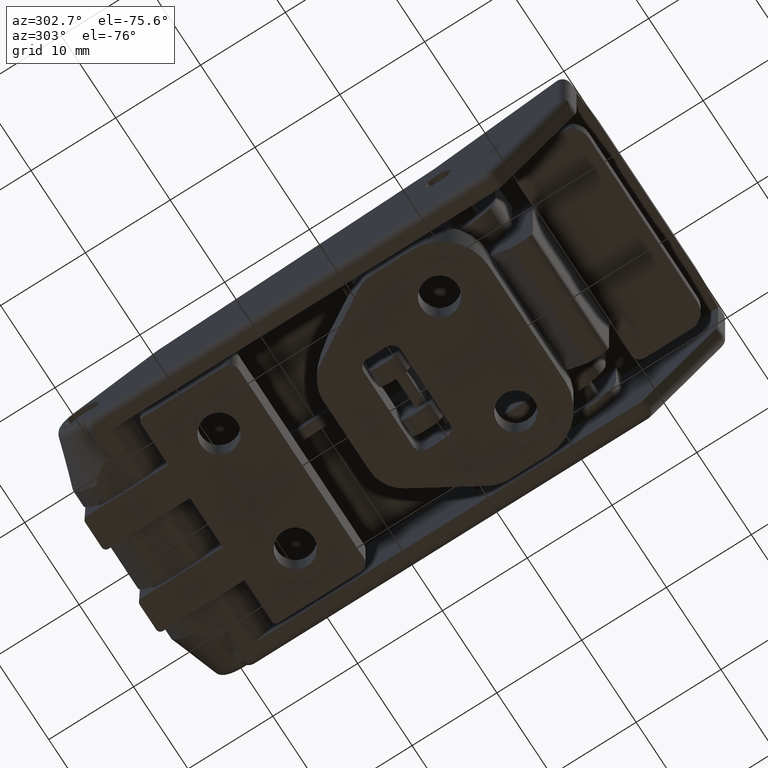
[diagram: clean part render]
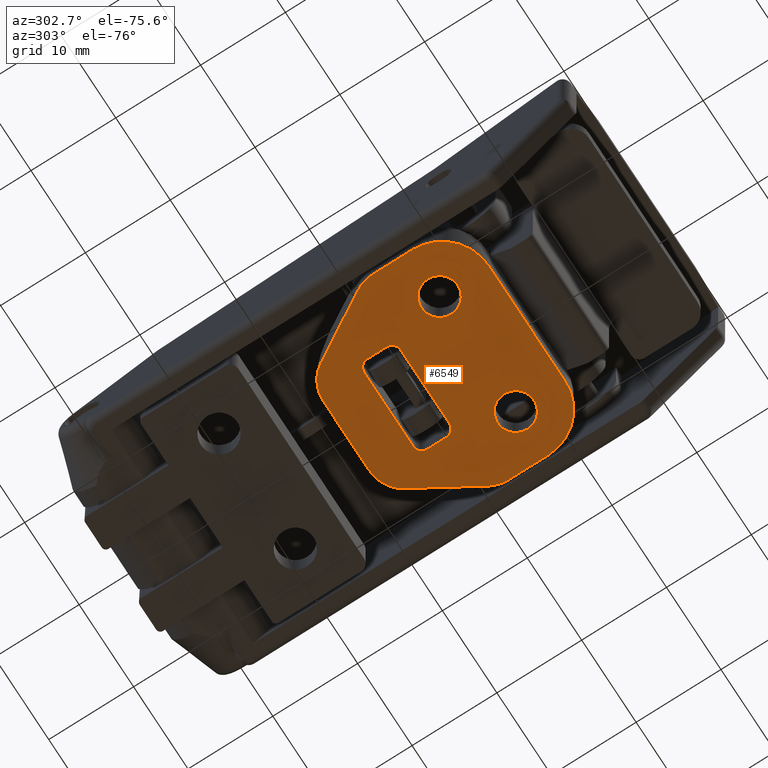
[diagram: same view with one face highlighted and labeled with its STEP entity id]
A machine part, auxiliary view. The second image highlights one B-rep face of the part: STEP entity #6549.
In plain terms, the highlighted planar face has unit normal (0, 0, 1).
Its self-contained STEP definition (entity closure, byte-faithful):
#108 = ORIENTED_EDGE ( 'NONE', *, *, #7552, .T. ) ;
#242 = CARTESIAN_POINT ( 'NONE',  ( -5.500000000000000900, 6.632451655132279600, 0.0000000000000000000 ) ) ;
#360 = DIRECTION ( 'NONE',  ( 1.000000000000000000, 0.0000000000000000000, 0.0000000000000000000 ) ) ;
#397 = CARTESIAN_POINT ( 'NONE',  ( 8.500000000000001800, 4.392064140206247900, 0.0000000000000000000 ) ) ;
#484 = CARTESIAN_POINT ( 'NONE',  ( -7.000000000000000000, 0.0000000000000000000, 0.0000000000000000000 ) ) ;
#550 = ORIENTED_EDGE ( 'NONE', *, *, #3716, .T. ) ;
#601 = DIRECTION ( 'NONE',  ( -0.0000000000000000000, 0.0000000000000000000, 1.000000000000000000 ) ) ;
#641 = AXIS2_PLACEMENT_3D ( 'NONE', #5346, #13005, #6433 ) ;
#709 = VECTOR ( 'NONE', #8869, 1000.000000000000000 ) ;
#729 = ORIENTED_EDGE ( 'NONE', *, *, #13863, .T. ) ;
#773 = CARTESIAN_POINT ( 'NONE',  ( -5.500000000000000000, 10.49999999999999100, 0.0000000000000000000 ) ) ;
#794 = CARTESIAN_POINT ( 'NONE',  ( 5.500000000000000000, 7.244030650891047300, -3.504537631043194400E-016 ) ) ;
#960 = CARTESIAN_POINT ( 'NONE',  ( 5.500000000000000000, 10.49999999999999100, 0.0000000000000000000 ) ) ;
#970 = CARTESIAN_POINT ( 'NONE',  ( 11.92997170285018000, 6.450047161916352000, 0.0000000000000000000 ) ) ;
#975 = CIRCLE ( 'NONE', #1890, 1.000000000000000000 ) ;
#1048 = AXIS2_PLACEMENT_3D ( 'NONE', #10308, #3780, #11421 ) ;
#1064 = CARTESIAN_POINT ( 'NONE',  ( 12.49999999999999500, 5.499999999999992900, 0.0000000000000000000 ) ) ;
#1125 = LINE ( 'NONE', #5094, #9829 ) ;
#1136 = FACE_OUTER_BOUND ( 'NONE', #4566, .T. ) ;
#1238 = CARTESIAN_POINT ( 'NONE',  ( -12.49999999999999500, 15.49999999999999100, 0.0000000000000000000 ) ) ;
#1325 = CARTESIAN_POINT ( 'NONE',  ( -4.500000000000000000, 6.199999999999992200, -4.628272012944402600E-016 ) ) ;
#1405 = LINE ( 'NONE', #960, #3977 ) ;
#1482 = DIRECTION ( 'NONE',  ( 1.000000000000000000, 0.0000000000000000000, 0.0000000000000000000 ) ) ;
#1560 = EDGE_CURVE ( 'NONE', #7190, #11883, #975, .T. ) ;
#1573 = DIRECTION ( 'NONE',  ( 1.000000000000000000, 0.0000000000000000000, 0.0000000000000000000 ) ) ;
#1731 = LINE ( 'NONE', #4260, #10094 ) ;
#1787 = AXIS2_PLACEMENT_3D ( 'NONE', #484, #8108, #1573 ) ;
#1816 = VERTEX_POINT ( 'NONE', #11660 ) ;
#1890 = AXIS2_PLACEMENT_3D ( 'NONE', #9780, #3246, #10911 ) ;
#1908 = VECTOR ( 'NONE', #4741, 1000.000000000000000 ) ;
#1933 = CARTESIAN_POINT ( 'NONE',  ( -5.500000000000000000, 9.499999999999991100, -1.076342328591722300E-016 ) ) ;
#2052 = DIRECTION ( 'NONE',  ( -0.0000000000000000000, 1.000000000000000000, 1.076342328591721800E-016 ) ) ;
#2175 = EDGE_CURVE ( 'NONE', #10014, #14050, #1125, .T. ) ;
#2210 = EDGE_CURVE ( 'NONE', #14167, #11883, #12100, .T. ) ;
#2494 = CARTESIAN_POINT ( 'NONE',  ( 5.500000000000000000, 9.499999999999991100, -1.076342328591722300E-016 ) ) ;
#2556 = CIRCLE ( 'NONE', #2807, 5.500000000000000000 ) ;
#2807 = AXIS2_PLACEMENT_3D ( 'NONE', #11735, #5188, #12842 ) ;
#2854 = EDGE_CURVE ( 'NONE', #14167, #6347, #6099, .T. ) ;
#2919 = VERTEX_POINT ( 'NONE', #4738 ) ;
#3067 = EDGE_LOOP ( 'NONE', ( #12030, #108 ) ) ;
#3093 = CARTESIAN_POINT ( 'NONE',  ( 4.235238484123758700, 11.49999999999999100, 0.0000000000000000000 ) ) ;
#3103 = DIRECTION ( 'NONE',  ( 3.257696668501046100E-016, 1.000000000000000000, -0.0000000000000000000 ) ) ;
#3246 = DIRECTION ( 'NONE',  ( -0.0000000000000000000, 0.0000000000000000000, 1.000000000000000000 ) ) ;
#3262 = VECTOR ( 'NONE', #11099, 1000.000000000000000 ) ;
#3343 = AXIS2_PLACEMENT_3D ( 'NONE', #4813, #12477, #5887 ) ;
#3465 = VERTEX_POINT ( 'NONE', #8454 ) ;
#3474 = DIRECTION ( 'NONE',  ( 0.0000000000000000000, -0.0000000000000000000, -1.000000000000000000 ) ) ;
#3648 = EDGE_CURVE ( 'NONE', #7190, #3973, #10808, .T. ) ;
#3699 = VERTEX_POINT ( 'NONE', #11052 ) ;
#3714 = CARTESIAN_POINT ( 'NONE',  ( 7.000000000000000000, 0.0000000000000000000, 0.0000000000000000000 ) ) ;
#3716 = EDGE_CURVE ( 'NONE', #6347, #10936, #9417, .T. ) ;
#3738 = EDGE_CURVE ( 'NONE', #11258, #3465, #12019, .T. ) ;
#3780 = DIRECTION ( 'NONE',  ( 0.0000000000000000000, -0.0000000000000000000, -1.000000000000000000 ) ) ;
#3877 = EDGE_CURVE ( 'NONE', #11786, #12605, #13201, .T. ) ;
#3973 = VERTEX_POINT ( 'NONE', #5227 ) ;
#3977 = VECTOR ( 'NONE', #2052, 1000.000000000000000 ) ;
#4050 = EDGE_CURVE ( 'NONE', #13552, #5595, #1731, .T. ) ;
#4053 = CARTESIAN_POINT ( 'NONE',  ( 5.085786437626903300, 6.199999999999992200, 0.0000000000000000000 ) ) ;
#4099 = ORIENTED_EDGE ( 'NONE', *, *, #13038, .F. ) ;
#4158 = CARTESIAN_POINT ( 'NONE',  ( 7.000000000000000000, 0.0000000000000000000, 0.0000000000000000000 ) ) ;
#4179 = ORIENTED_EDGE ( 'NONE', *, *, #6699, .T. ) ;
#4184 = CIRCLE ( 'NONE', #641, 2.149999999999999900 ) ;
#4217 = DIRECTION ( 'NONE',  ( 1.000000000000000000, 0.0000000000000000000, 0.0000000000000000000 ) ) ;
#4260 = CARTESIAN_POINT ( 'NONE',  ( -12.49999999999999500, 5.499999999999992900, 0.0000000000000000000 ) ) ;
#4371 = ORIENTED_EDGE ( 'NONE', *, *, #6752, .T. ) ;
#4373 = AXIS2_PLACEMENT_3D ( 'NONE', #12623, #601, #8233 ) ;
#4414 = DIRECTION ( 'NONE',  ( 1.000000000000000000, -0.0000000000000000000, -0.0000000000000000000 ) ) ;
#4556 = EDGE_LOOP ( 'NONE', ( #6056, #12962, #10543, #5836, #550, #11275, #729, #4179 ) ) ;
#4566 = EDGE_LOOP ( 'NONE', ( #11150, #5496, #10188, #5877, #7941, #4371, #11782, #8810, #12876, #10448, #4099, #7737 ) ) ;
#4572 = CARTESIAN_POINT ( 'NONE',  ( -11.92997170285017500, 6.450047161916360800, 0.0000000000000000000 ) ) ;
#4616 = CIRCLE ( 'NONE', #1048, 4.000000000000000000 ) ;
#4668 = EDGE_CURVE ( 'NONE', #10014, #12605, #2556, .T. ) ;
#4738 = CARTESIAN_POINT ( 'NONE',  ( 7.665210186973935100, 13.55798302171009700, 0.0000000000000000000 ) ) ;
#4741 = DIRECTION ( 'NONE',  ( -1.628848334250523100E-016, -1.000000000000000000, 0.0000000000000000000 ) ) ;
#4813 = CARTESIAN_POINT ( 'NONE',  ( -8.499999999999996400, 4.392064140206255900, 0.0000000000000000000 ) ) ;
#4820 = DIRECTION ( 'NONE',  ( 1.000000000000000000, 0.0000000000000000000, 0.0000000000000000000 ) ) ;
#4866 = LINE ( 'NONE', #1064, #13239 ) ;
#4953 = AXIS2_PLACEMENT_3D ( 'NONE', #4158, #11817, #5271 ) ;
#5094 = CARTESIAN_POINT ( 'NONE',  ( -12.49999999999999800, -5.800000000000008700, 0.0000000000000000000 ) ) ;
#5188 = DIRECTION ( 'NONE',  ( 0.0000000000000000000, -0.0000000000000000000, -1.000000000000000000 ) ) ;
#5227 = CARTESIAN_POINT ( 'NONE',  ( 4.499999999999999100, 10.49999999999999100, 0.0000000000000000000 ) ) ;
#5271 = DIRECTION ( 'NONE',  ( 1.000000000000000000, 0.0000000000000000000, 0.0000000000000000000 ) ) ;
#5346 = CARTESIAN_POINT ( 'NONE',  ( -7.000000000000000000, 0.0000000000000000000, 0.0000000000000000000 ) ) ;
#5356 = DIRECTION ( 'NONE',  ( 0.5144957554275263500, 0.8574929257125443200, 0.0000000000000000000 ) ) ;
#5401 = AXIS2_PLACEMENT_3D ( 'NONE', #397, #8020, #1482 ) ;
#5429 = EDGE_CURVE ( 'NONE', #7098, #3699, #10063, .T. ) ;
#5431 = EDGE_CURVE ( 'NONE', #5595, #3465, #4616, .T. ) ;
#5452 = CARTESIAN_POINT ( 'NONE',  ( 4.499999999999999100, 6.199999999999992200, -4.628272012944402600E-016 ) ) ;
#5496 = ORIENTED_EDGE ( 'NONE', *, *, #12156, .T. ) ;
#5595 = VERTEX_POINT ( 'NONE', #10557 ) ;
#5827 = VERTEX_POINT ( 'NONE', #13145 ) ;
#5836 = ORIENTED_EDGE ( 'NONE', *, *, #2854, .T. ) ;
#5877 = ORIENTED_EDGE ( 'NONE', *, *, #4668, .T. ) ;
#5887 = DIRECTION ( 'NONE',  ( 1.000000000000000000, 0.0000000000000000000, 0.0000000000000000000 ) ) ;
#6056 = ORIENTED_EDGE ( 'NONE', *, *, #3648, .F. ) ;
#6099 =( BOUNDED_CURVE ( )  B_SPLINE_CURVE ( 3, ( #7872, #242, #13335, #1325 ),
 .UNSPECIFIED., .F., .F. ) 
 B_SPLINE_CURVE_WITH_KNOTS ( ( 4, 4 ),
 ( 4.712388980384687900, 6.283185307179586200 ),
 .UNSPECIFIED. ) 
 CURVE ( )  GEOMETRIC_REPRESENTATION_ITEM ( )  RATIONAL_B_SPLINE_CURVE ( ( 1.000000000000000000, 0.8047378541243646000, 0.8047378541243646000, 1.000000000000000000 ) ) 
 REPRESENTATION_ITEM ( '' )  );
#6132 = CARTESIAN_POINT ( 'NONE',  ( -12.49999999999999600, 4.392064140206255900, 0.0000000000000000000 ) ) ;
#6347 = VERTEX_POINT ( 'NONE', #13326 ) ;
#6365 = CARTESIAN_POINT ( 'NONE',  ( 12.50000000000000500, 15.49999999999999100, 0.0000000000000000000 ) ) ;
#6433 = DIRECTION ( 'NONE',  ( 1.000000000000000000, 0.0000000000000000000, 0.0000000000000000000 ) ) ;
#6437 = CIRCLE ( 'NONE', #4953, 2.149999999999999900 ) ;
#6549 = ADVANCED_FACE ( 'NONE', ( #6796, #9840, #6946, #1136 ), #13690, .F. ) ;
#6638 = VERTEX_POINT ( 'NONE', #6700 ) ;
#6672 = VERTEX_POINT ( 'NONE', #12244 ) ;
#6699 = EDGE_CURVE ( 'NONE', #13602, #3973, #8668, .T. ) ;
#6700 = CARTESIAN_POINT ( 'NONE',  ( 5.500000000000000000, 7.244030650891047300, -3.504537631043194400E-016 ) ) ;
#6752 = EDGE_CURVE ( 'NONE', #11786, #13552, #11262, .T. ) ;
#6796 = FACE_BOUND ( 'NONE', #3067, .T. ) ;
#6889 = DIRECTION ( 'NONE',  ( -0.0000000000000000000, 0.0000000000000000000, 1.000000000000000000 ) ) ;
#6946 = FACE_BOUND ( 'NONE', #4556, .T. ) ;
#7098 = VERTEX_POINT ( 'NONE', #9779 ) ;
#7131 = CARTESIAN_POINT ( 'NONE',  ( -7.000000000000000000, -5.800000000000008700, 0.0000000000000000000 ) ) ;
#7190 = VERTEX_POINT ( 'NONE', #12125 ) ;
#7204 = VECTOR ( 'NONE', #4414, 1000.000000000000000 ) ;
#7338 = CARTESIAN_POINT ( 'NONE',  ( 5.499999999999999100, 6.632451655132277900, 0.0000000000000000000 ) ) ;
#7552 = EDGE_CURVE ( 'NONE', #12247, #5827, #6437, .T. ) ;
#7554 = CIRCLE ( 'NONE', #9329, 4.000000000000000000 ) ;
#7737 = ORIENTED_EDGE ( 'NONE', *, *, #10292, .T. ) ;
#7792 = CARTESIAN_POINT ( 'NONE',  ( -5.500000000000000000, 6.199999999999992200, -4.628272012944402600E-016 ) ) ;
#7872 = CARTESIAN_POINT ( 'NONE',  ( -5.500000000000000000, 7.244030650891049000, -3.504537631043192400E-016 ) ) ;
#7941 = ORIENTED_EDGE ( 'NONE', *, *, #3877, .F. ) ;
#8020 = DIRECTION ( 'NONE',  ( 0.0000000000000000000, -0.0000000000000000000, -1.000000000000000000 ) ) ;
#8107 = CARTESIAN_POINT ( 'NONE',  ( -5.500000000000000000, 7.244030650891049000, -3.504537631043192400E-016 ) ) ;
#8108 = DIRECTION ( 'NONE',  ( 0.0000000000000000000, -0.0000000000000000000, -1.000000000000000000 ) ) ;
#8233 = DIRECTION ( 'NONE',  ( 1.000000000000000000, 0.0000000000000000000, 0.0000000000000000000 ) ) ;
#8281 =( BOUNDED_CURVE ( )  B_SPLINE_CURVE ( 3, ( #9429, #4053, #7338, #794 ),
 .UNSPECIFIED., .F., .T. ) 
 B_SPLINE_CURVE_WITH_KNOTS ( ( 4, 4 ),
 ( 3.141592653589793100, 4.712388980384689700 ),
 .UNSPECIFIED. ) 
 CURVE ( )  GEOMETRIC_REPRESENTATION_ITEM ( )  RATIONAL_B_SPLINE_CURVE ( ( 1.000000000000000000, 0.8047378541243649400, 0.8047378541243649400, 1.000000000000000000 ) ) 
 REPRESENTATION_ITEM ( '' )  );
#8407 = DIRECTION ( 'NONE',  ( -0.0000000000000000000, 1.000000000000000000, 1.076342328591721800E-016 ) ) ;
#8454 = CARTESIAN_POINT ( 'NONE',  ( -4.235238484123758700, 15.49999999999999100, 0.0000000000000000000 ) ) ;
#8668 = CIRCLE ( 'NONE', #12443, 1.000000000000000000 ) ;
#8782 = AXIS2_PLACEMENT_3D ( 'NONE', #10013, #3474, #11130 ) ;
#8789 = EDGE_CURVE ( 'NONE', #3699, #7098, #4184, .T. ) ;
#8810 = ORIENTED_EDGE ( 'NONE', *, *, #5431, .T. ) ;
#8869 = DIRECTION ( 'NONE',  ( 1.000000000000000000, -0.0000000000000000000, -0.0000000000000000000 ) ) ;
#8966 = CARTESIAN_POINT ( 'NONE',  ( 6.999999999999993800, -5.800000000000008700, 0.0000000000000000000 ) ) ;
#9142 = VECTOR ( 'NONE', #8407, 1000.000000000000000 ) ;
#9329 = AXIS2_PLACEMENT_3D ( 'NONE', #3093, #10763, #4217 ) ;
#9417 = LINE ( 'NONE', #7792, #709 ) ;
#9429 = CARTESIAN_POINT ( 'NONE',  ( 4.499999999999999100, 6.199999999999992200, -4.628272012944402600E-016 ) ) ;
#9689 = CIRCLE ( 'NONE', #12321, 2.149999999999999900 ) ;
#9721 = CIRCLE ( 'NONE', #5401, 4.000000000000000000 ) ;
#9779 = CARTESIAN_POINT ( 'NONE',  ( -4.850000000000000500, 0.0000000000000000000, 0.0000000000000000000 ) ) ;
#9780 = CARTESIAN_POINT ( 'NONE',  ( -4.500000000000000000, 9.499999999999991100, 0.0000000000000000000 ) ) ;
#9824 = CARTESIAN_POINT ( 'NONE',  ( -5.500000000000000000, 10.49999999999999100, 0.0000000000000000000 ) ) ;
#9829 = VECTOR ( 'NONE', #13823, 1000.000000000000000 ) ;
#9840 = FACE_BOUND ( 'NONE', #10484, .T. ) ;
#10013 = CARTESIAN_POINT ( 'NONE',  ( 7.000000000000000900, -0.3000000000000085900, 0.0000000000000000000 ) ) ;
#10014 = VERTEX_POINT ( 'NONE', #7131 ) ;
#10063 = CIRCLE ( 'NONE', #1787, 2.149999999999999900 ) ;
#10094 = VECTOR ( 'NONE', #5356, 1000.000000000000000 ) ;
#10188 = ORIENTED_EDGE ( 'NONE', *, *, #2175, .F. ) ;
#10292 = EDGE_CURVE ( 'NONE', #12989, #1816, #9721, .T. ) ;
#10308 = CARTESIAN_POINT ( 'NONE',  ( -4.235238484123758700, 11.49999999999999100, 0.0000000000000000000 ) ) ;
#10448 = ORIENTED_EDGE ( 'NONE', *, *, #13846, .T. ) ;
#10484 = EDGE_LOOP ( 'NONE', ( #13084, #13528 ) ) ;
#10543 = ORIENTED_EDGE ( 'NONE', *, *, #2210, .F. ) ;
#10557 = CARTESIAN_POINT ( 'NONE',  ( -7.665210186973935100, 13.55798302171009700, 0.0000000000000000000 ) ) ;
#10763 = DIRECTION ( 'NONE',  ( 0.0000000000000000000, -0.0000000000000000000, -1.000000000000000000 ) ) ;
#10808 = LINE ( 'NONE', #9824, #7204 ) ;
#10830 = CARTESIAN_POINT ( 'NONE',  ( -12.49999999999999600, -0.3000000000000068700, 0.0000000000000000000 ) ) ;
#10911 = DIRECTION ( 'NONE',  ( 1.000000000000000000, 0.0000000000000000000, 0.0000000000000000000 ) ) ;
#10936 = VERTEX_POINT ( 'NONE', #5452 ) ;
#11052 = CARTESIAN_POINT ( 'NONE',  ( -9.150000000000000400, 2.632990618166809700E-016, 0.0000000000000000000 ) ) ;
#11099 = DIRECTION ( 'NONE',  ( -1.000000000000000000, -0.0000000000000000000, -0.0000000000000000000 ) ) ;
#11130 = DIRECTION ( 'NONE',  ( 1.000000000000000000, 0.0000000000000000000, 0.0000000000000000000 ) ) ;
#11150 = ORIENTED_EDGE ( 'NONE', *, *, #12961, .F. ) ;
#11258 = VERTEX_POINT ( 'NONE', #13704 ) ;
#11262 = CIRCLE ( 'NONE', #3343, 4.000000000000000000 ) ;
#11268 = CARTESIAN_POINT ( 'NONE',  ( 4.850000000000000500, 2.632990618166809700E-016, 0.0000000000000000000 ) ) ;
#11275 = ORIENTED_EDGE ( 'NONE', *, *, #12505, .T. ) ;
#11353 = DIRECTION ( 'NONE',  ( -0.0000000000000000000, 0.0000000000000000000, 1.000000000000000000 ) ) ;
#11421 = DIRECTION ( 'NONE',  ( 1.000000000000000000, 0.0000000000000000000, 0.0000000000000000000 ) ) ;
#11653 = EDGE_CURVE ( 'NONE', #5827, #12247, #9689, .T. ) ;
#11660 = CARTESIAN_POINT ( 'NONE',  ( 12.50000000000000200, 4.392064140206245200, 0.0000000000000000000 ) ) ;
#11708 = VECTOR ( 'NONE', #3103, 1000.000000000000000 ) ;
#11735 = CARTESIAN_POINT ( 'NONE',  ( -6.999999999999998200, -0.3000000000000085900, 0.0000000000000000000 ) ) ;
#11782 = ORIENTED_EDGE ( 'NONE', *, *, #4050, .T. ) ;
#11786 = VERTEX_POINT ( 'NONE', #6132 ) ;
#11817 = DIRECTION ( 'NONE',  ( -0.0000000000000000000, 0.0000000000000000000, 1.000000000000000000 ) ) ;
#11883 = VERTEX_POINT ( 'NONE', #1933 ) ;
#12019 = LINE ( 'NONE', #1238, #3262 ) ;
#12030 = ORIENTED_EDGE ( 'NONE', *, *, #11653, .T. ) ;
#12031 = DIRECTION ( 'NONE',  ( -0.5144957554275263500, 0.8574929257125443200, 0.0000000000000000000 ) ) ;
#12054 = LINE ( 'NONE', #6365, #11708 ) ;
#12100 = LINE ( 'NONE', #773, #9142 ) ;
#12125 = CARTESIAN_POINT ( 'NONE',  ( -4.500000000000000000, 10.49999999999999100, 0.0000000000000000000 ) ) ;
#12156 = EDGE_CURVE ( 'NONE', #6672, #14050, #13791, .T. ) ;
#12244 = CARTESIAN_POINT ( 'NONE',  ( 12.50000000000000000, -0.3000000000000103100, 0.0000000000000000000 ) ) ;
#12247 = VERTEX_POINT ( 'NONE', #11268 ) ;
#12321 = AXIS2_PLACEMENT_3D ( 'NONE', #3714, #11353, #4820 ) ;
#12399 = CARTESIAN_POINT ( 'NONE',  ( -12.49999999999999500, 15.49999999999999100, 0.0000000000000000000 ) ) ;
#12443 = AXIS2_PLACEMENT_3D ( 'NONE', #13453, #6889, #360 ) ;
#12477 = DIRECTION ( 'NONE',  ( 0.0000000000000000000, -0.0000000000000000000, -1.000000000000000000 ) ) ;
#12505 = EDGE_CURVE ( 'NONE', #10936, #6638, #8281, .T. ) ;
#12605 = VERTEX_POINT ( 'NONE', #10830 ) ;
#12623 = CARTESIAN_POINT ( 'NONE',  ( 0.0000000000000000000, 0.0000000000000000000, 0.0000000000000000000 ) ) ;
#12842 = DIRECTION ( 'NONE',  ( 1.000000000000000000, 0.0000000000000000000, 0.0000000000000000000 ) ) ;
#12876 = ORIENTED_EDGE ( 'NONE', *, *, #3738, .F. ) ;
#12961 = EDGE_CURVE ( 'NONE', #6672, #1816, #12054, .T. ) ;
#12962 = ORIENTED_EDGE ( 'NONE', *, *, #1560, .T. ) ;
#12989 = VERTEX_POINT ( 'NONE', #970 ) ;
#13005 = DIRECTION ( 'NONE',  ( 0.0000000000000000000, -0.0000000000000000000, -1.000000000000000000 ) ) ;
#13038 = EDGE_CURVE ( 'NONE', #12989, #2919, #4866, .T. ) ;
#13084 = ORIENTED_EDGE ( 'NONE', *, *, #5429, .F. ) ;
#13145 = CARTESIAN_POINT ( 'NONE',  ( 9.150000000000000400, 0.0000000000000000000, 0.0000000000000000000 ) ) ;
#13201 = LINE ( 'NONE', #12399, #1908 ) ;
#13239 = VECTOR ( 'NONE', #12031, 1000.000000000000000 ) ;
#13326 = CARTESIAN_POINT ( 'NONE',  ( -4.500000000000000000, 6.199999999999992200, -4.628272012944402600E-016 ) ) ;
#13335 = CARTESIAN_POINT ( 'NONE',  ( -5.085786437626905100, 6.199999999999994000, 0.0000000000000000000 ) ) ;
#13453 = CARTESIAN_POINT ( 'NONE',  ( 4.499999999999999100, 9.499999999999991100, 0.0000000000000000000 ) ) ;
#13528 = ORIENTED_EDGE ( 'NONE', *, *, #8789, .F. ) ;
#13552 = VERTEX_POINT ( 'NONE', #4572 ) ;
#13602 = VERTEX_POINT ( 'NONE', #2494 ) ;
#13690 = PLANE ( 'NONE',  #4373 ) ;
#13704 = CARTESIAN_POINT ( 'NONE',  ( 4.235238484123758700, 15.49999999999999100, 0.0000000000000000000 ) ) ;
#13791 = CIRCLE ( 'NONE', #8782, 5.500000000000000000 ) ;
#13823 = DIRECTION ( 'NONE',  ( 1.000000000000000000, 0.0000000000000000000, 0.0000000000000000000 ) ) ;
#13846 = EDGE_CURVE ( 'NONE', #11258, #2919, #7554, .T. ) ;
#13863 = EDGE_CURVE ( 'NONE', #6638, #13602, #1405, .T. ) ;
#14050 = VERTEX_POINT ( 'NONE', #8966 ) ;
#14167 = VERTEX_POINT ( 'NONE', #8107 ) ;